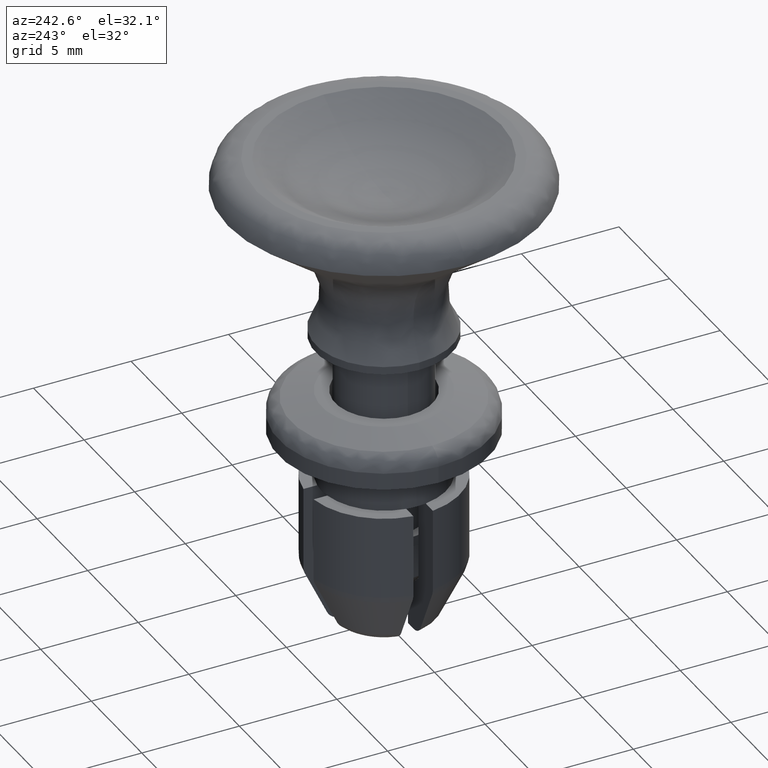
[diagram: clean part render]
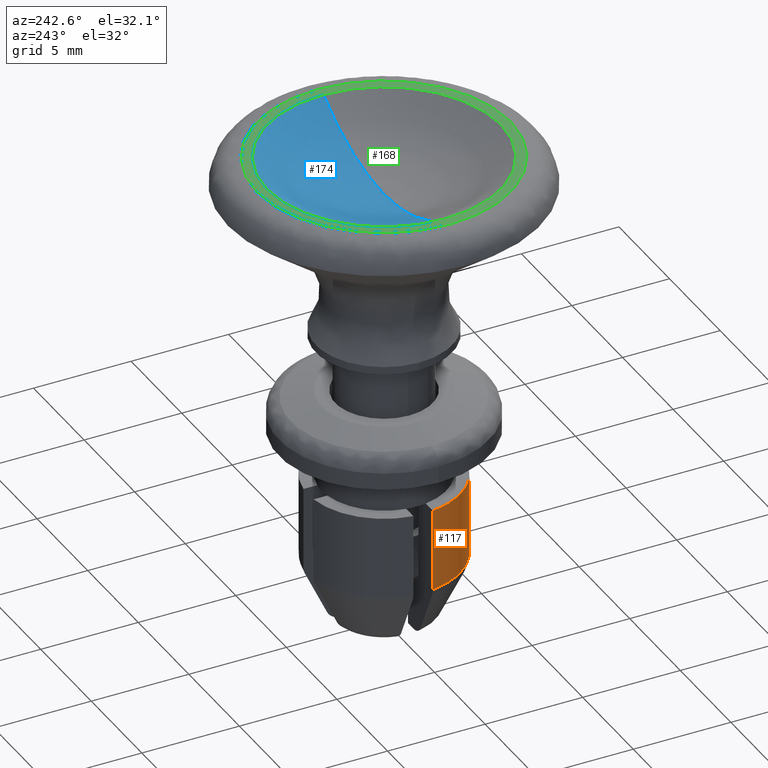
[diagram: same view with three faces highlighted in distinct colors, each labeled with its STEP entity id]
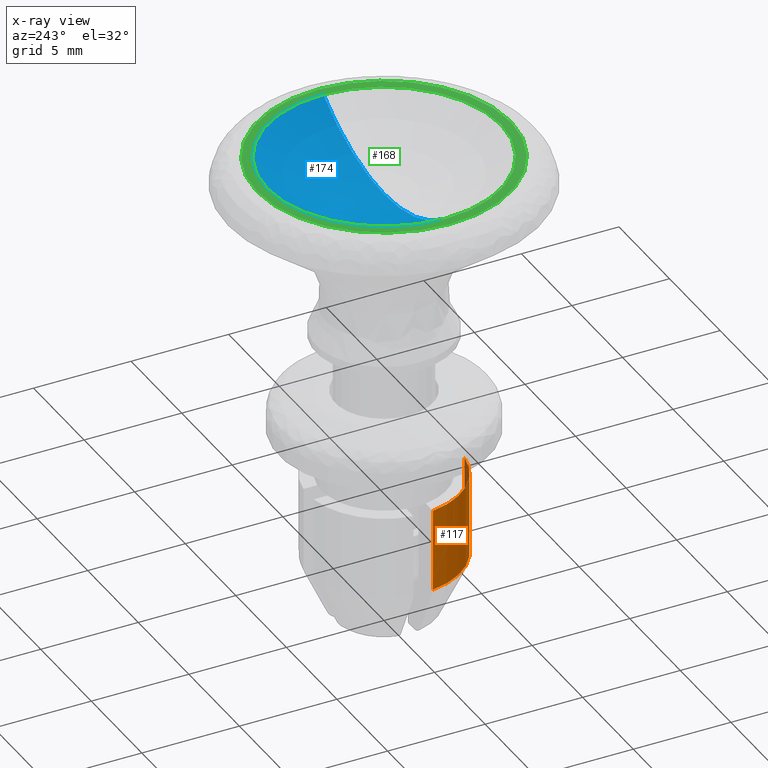
[diagram: x-ray of the same camera — body ghosted, the three highlighted faces saturated]
A machine part, auxiliary view with three faces highlighted in distinct colors.
The next image is the same camera in x-ray (body ghosted, the three faces saturated) — at least one of them is partly hidden behind the body in this view.
Their STEP definitions:

[orange] entity #117 — the highlighted cylindrical surface (partial cylindrical patch) has radius 3.9 mm, axis along (0, 0, 1).
#117=ADVANCED_FACE('',(#246),#245,.T.);
#245=CYLINDRICAL_SURFACE('',#1077,3.90000000000E+00);
#246=FACE_OUTER_BOUND('',#1078,.T.);
#1074=CARTESIAN_POINT('',(0.00000000000E+00,0.00000000000E+00,0.00000000000E+00));
#1075=DIRECTION('',(-0.00000000000E+00,-0.00000000000E+00,1.00000000000E+00));
#1076=DIRECTION('',(1.00000000000E+00,-0.00000000000E+00,-0.00000000000E+00));
#1077=AXIS2_PLACEMENT_3D('',#1074,#1075,#1076);
#1078=EDGE_LOOP('',(#1730,#1731,#1732,#1733));
#1730=ORIENTED_EDGE('',*,*,#2124,.F.);
#1731=ORIENTED_EDGE('',*,*,#2134,.T.);
#1732=ORIENTED_EDGE('',*,*,#2135,.F.);
#1733=ORIENTED_EDGE('',*,*,#2136,.F.);
#2124=EDGE_CURVE('',#2452,#2459,#2460,.T.);
#2134=EDGE_CURVE('',#2452,#2528,#2529,.T.);
#2135=EDGE_CURVE('',#2535,#2528,#2536,.T.);
#2136=EDGE_CURVE('',#2459,#2535,#2542,.T.);
#2452=VERTEX_POINT('',#3749);
#2459=VERTEX_POINT('',#3753);
#2460=LINE('',#3754,#3755);
#2528=VERTEX_POINT('',#3809);
#2529=CIRCLE('',#3813,3.90000000000E+00);
#2535=VERTEX_POINT('',#3814);
#2536=LINE('',#3815,#3816);
#2542=CIRCLE('',#3821,3.90000000000E+00);
#3749=CARTESIAN_POINT('',(-5.00000000000E-01,-3.86781592116E+00,-4.50000000000E+00));
#3753=CARTESIAN_POINT('',(-5.00000000000E-01,-3.86781592116E+00,-8.73390000000E+00));
#3754=CARTESIAN_POINT('',(-5.00000000000E-01,-3.86781592116E+00,-4.50000000000E+00));
#3755=VECTOR('',#3756,4.23390000000E+00);
#3756=DIRECTION('',(0.00000000000E+00,0.00000000000E+00,-1.00000000000E+00));
#3809=CARTESIAN_POINT('',(-3.86781592116E+00,-5.00000000000E-01,-4.50000000000E+00));
#3810=CARTESIAN_POINT('',(0.00000000000E+00,0.00000000000E+00,-4.50000000000E+00));
#3811=DIRECTION('',(0.00000000000E+00,0.00000000000E+00,-1.00000000000E+00));
#3812=DIRECTION('',(1.00000000000E+00,-0.00000000000E+00,-0.00000000000E+00));
#3813=AXIS2_PLACEMENT_3D('',#3810,#3811,#3812);
#3814=CARTESIAN_POINT('',(-3.86781592116E+00,-5.00000000000E-01,-8.73390000000E+00));
#3815=CARTESIAN_POINT('',(-3.86781592116E+00,-5.00000000000E-01,-8.73390000000E+00));
#3816=VECTOR('',#3817,4.23390000000E+00);
#3817=DIRECTION('',(0.00000000000E+00,0.00000000000E+00,1.00000000000E+00));
#3818=CARTESIAN_POINT('',(0.00000000000E+00,0.00000000000E+00,-8.73390000000E+00));
#3819=DIRECTION('',(0.00000000000E+00,0.00000000000E+00,-1.00000000000E+00));
#3820=DIRECTION('',(1.00000000000E+00,-0.00000000000E+00,-0.00000000000E+00));
#3821=AXIS2_PLACEMENT_3D('',#3818,#3819,#3820);

[blue] entity #174 — the highlighted spherical surface has radius 10 mm.
#174=ADVANCED_FACE('',(#822),#821,.F.);
#821=SPHERICAL_SURFACE('',#1484,1.00000000000E+01);
#822=FACE_OUTER_BOUND('',#1485,.T.);
#1481=CARTESIAN_POINT('',(0.00000000000E+00,0.00000000000E+00,1.75000000000E+01));
#1482=DIRECTION('',(0.00000000000E+00,0.00000000000E+00,-1.00000000000E+00));
#1483=DIRECTION('',(-1.00000000000E+00,-4.04453249759E-21,0.00000000000E+00));
#1484=AXIS2_PLACEMENT_3D('',#1481,#1482,#1483);
#1485=EDGE_LOOP('',(#2019,#2020,#2021));
#2019=ORIENTED_EDGE('',*,*,#2270,.F.);
#2020=ORIENTED_EDGE('',*,*,#2254,.F.);
#2021=ORIENTED_EDGE('',*,*,#2271,.T.);
#2254=EDGE_CURVE('',#3314,#3315,#3316,.T.);
#2270=EDGE_CURVE('',#3315,#3426,#3427,.T.);
#2271=EDGE_CURVE('',#3314,#3426,#3433,.T.);
#3314=VERTEX_POINT('',#4317);
#3315=VERTEX_POINT('',#4318);
#3316=CIRCLE('',#4322,6.00000000000E+00);
#3426=VERTEX_POINT('',#4397);
#3427=(BOUNDED_CURVE() B_SPLINE_CURVE(2,(#4398,#4399,#4400),.UNSPECIFIED.,.F.,.F.) B_SPLINE_CURVE_WITH_KNOTS((3,3),(0.00000000000E+00,1.00000000000E+00),.UNSPECIFIED.) CURVE() GEOMETRIC_REPRESENTATION_ITEM() RATIONAL_B_SPLINE_CURVE((1.00000000000E+00,9.48683298051E-01,1.00000000000E+00)) REPRESENTATION_ITEM('') );
#3433=(BOUNDED_CURVE() B_SPLINE_CURVE(2,(#4401,#4402,#4403),.UNSPECIFIED.,.F.,.F.) B_SPLINE_CURVE_WITH_KNOTS((3,3),(0.00000000000E+00,1.00000000000E+00),.UNSPECIFIED.) CURVE() GEOMETRIC_REPRESENTATION_ITEM() RATIONAL_B_SPLINE_CURVE((7.50000000000E-01,7.11512473538E-01,7.50000000000E-01)) REPRESENTATION_ITEM('') );
#4317=CARTESIAN_POINT('',(-6.00000000000E+00,0.00000000000E+00,9.50000000000E+00));
#4318=CARTESIAN_POINT('',(6.00000000000E+00,-2.96059473233E-16,9.50000000000E+00));
#4319=CARTESIAN_POINT('',(0.00000000000E+00,0.00000000000E+00,9.50000000000E+00));
#4320=DIRECTION('',(-0.00000000000E+00,0.00000000000E+00,-1.00000000000E+00));
#4321=DIRECTION('',(-1.00000000000E+00,-1.22460635382E-16,0.00000000000E+00));
#4322=AXIS2_PLACEMENT_3D('',#4319,#4320,#4321);
#4397=CARTESIAN_POINT('',(1.77635683940E-15,-1.97215226305E-31,7.50000000000E+00));
#4398=CARTESIAN_POINT('',(6.00000000000E+00,-7.34763812293E-16,9.50000000000E+00));
#4399=CARTESIAN_POINT('',(3.33333333333E+00,-4.08202117941E-16,7.50000000000E+00));
#4400=CARTESIAN_POINT('',(1.77635683940E-15,-1.97215226305E-31,7.50000000000E+00));
#4401=CARTESIAN_POINT('',(-6.00000000000E+00,8.88178419700E-16,9.50000000000E+00));
#4402=CARTESIAN_POINT('',(-3.33333333333E+00,4.68111129144E-16,7.50000000000E+00));
#4403=CARTESIAN_POINT('',(-1.77635683940E-15,2.62953635074E-31,7.50000000000E+00));

[green] entity #168 — the highlighted planar face has unit normal (0, 0, 1).
#168=ADVANCED_FACE('',(#758,#759),#757,.T.);
#757=PLANE('',#1450);
#758=FACE_OUTER_BOUND('',#1451,.T.);
#759=FACE_BOUND('',#1452,.T.);
#1447=CARTESIAN_POINT('',(-8.45429000000E+00,-1.35168552202E+01,9.50000000000E+00));
#1448=DIRECTION('',(0.00000000000E+00,0.00000000000E+00,1.00000000000E+00));
#1449=DIRECTION('',(1.00000000000E+00,0.00000000000E+00,0.00000000000E+00));
#1450=AXIS2_PLACEMENT_3D('',#1447,#1448,#1449);
#1451=EDGE_LOOP('',(#1998,#1999));
#1452=EDGE_LOOP('',(#2000,#2001));
#1998=ORIENTED_EDGE('',*,*,#2252,.F.);
#1999=ORIENTED_EDGE('',*,*,#2253,.F.);
#2000=ORIENTED_EDGE('',*,*,#2254,.T.);
#2001=ORIENTED_EDGE('',*,*,#2255,.T.);
#2252=EDGE_CURVE('',#3300,#3301,#3302,.T.);
#2253=EDGE_CURVE('',#3301,#3300,#3308,.T.);
#2254=EDGE_CURVE('',#3314,#3315,#3316,.T.);
#2255=EDGE_CURVE('',#3315,#3314,#3322,.T.);
#3300=VERTEX_POINT('',#4307);
#3301=VERTEX_POINT('',#4308);
#3302=CIRCLE('',#4312,6.50330000000E+00);
#3308=CIRCLE('',#4316,6.50330000000E+00);
#3314=VERTEX_POINT('',#4317);
#3315=VERTEX_POINT('',#4318);
#3316=CIRCLE('',#4322,6.00000000000E+00);
#3322=CIRCLE('',#4326,6.00000000000E+00);
#4307=CARTESIAN_POINT('',(6.50330000000E+00,0.00000000000E+00,9.50000000000E+00));
#4308=CARTESIAN_POINT('',(-6.50330000000E+00,0.00000000000E+00,9.50000000000E+00));
#4309=CARTESIAN_POINT('',(0.00000000000E+00,0.00000000000E+00,9.50000000000E+00));
#4310=DIRECTION('',(-0.00000000000E+00,0.00000000000E+00,-1.00000000000E+00));
#4311=DIRECTION('',(-1.00000000000E+00,-1.22460635382E-16,0.00000000000E+00));
#4312=AXIS2_PLACEMENT_3D('',#4309,#4310,#4311);
#4313=CARTESIAN_POINT('',(0.00000000000E+00,0.00000000000E+00,9.50000000000E+00));
#4314=DIRECTION('',(-0.00000000000E+00,0.00000000000E+00,-1.00000000000E+00));
#4315=DIRECTION('',(-1.00000000000E+00,-1.22460635382E-16,0.00000000000E+00));
#4316=AXIS2_PLACEMENT_3D('',#4313,#4314,#4315);
#4317=CARTESIAN_POINT('',(-6.00000000000E+00,0.00000000000E+00,9.50000000000E+00));
#4318=CARTESIAN_POINT('',(6.00000000000E+00,-2.96059473233E-16,9.50000000000E+00));
#4319=CARTESIAN_POINT('',(0.00000000000E+00,0.00000000000E+00,9.50000000000E+00));
#4320=DIRECTION('',(-0.00000000000E+00,0.00000000000E+00,-1.00000000000E+00));
#4321=DIRECTION('',(-1.00000000000E+00,-1.22460635382E-16,0.00000000000E+00));
#4322=AXIS2_PLACEMENT_3D('',#4319,#4320,#4321);
#4323=CARTESIAN_POINT('',(0.00000000000E+00,0.00000000000E+00,9.50000000000E+00));
#4324=DIRECTION('',(-0.00000000000E+00,0.00000000000E+00,-1.00000000000E+00));
#4325=DIRECTION('',(-1.00000000000E+00,-1.22460635382E-16,0.00000000000E+00));
#4326=AXIS2_PLACEMENT_3D('',#4323,#4324,#4325);